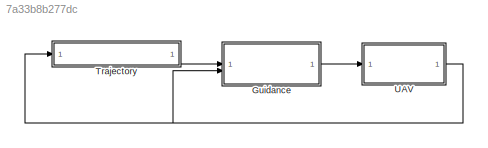
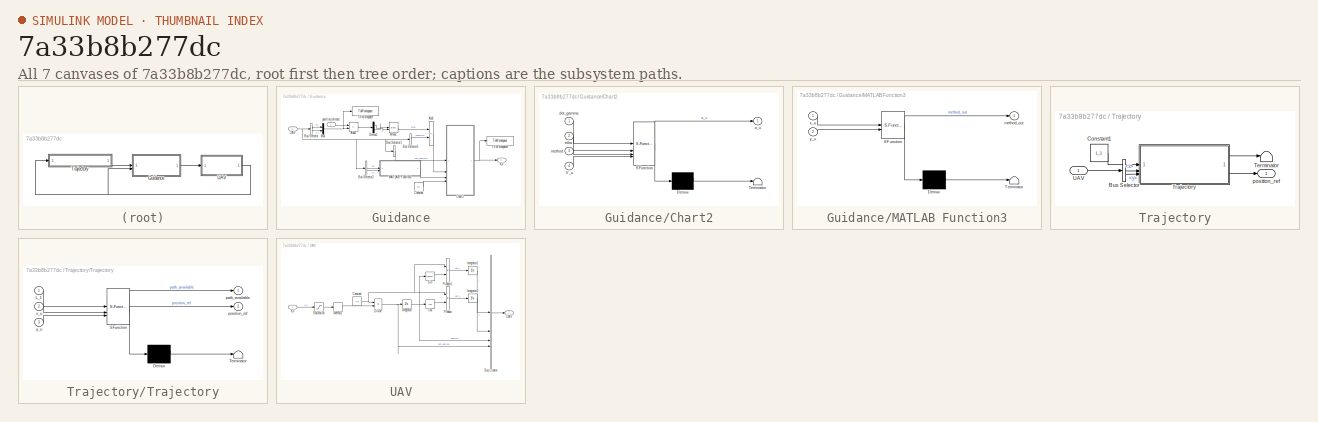
[diagram: thumbnail index - all 7 canvases of the model, root first then tree order]
MODEL slx_7a33b8b277dc
KIND model
CONFIG AbsTol = auto
CONFIG EnableMultiTasking = off
CONFIG FixedStep = 0.1
CONFIG InitFcn = init;
CONFIG MaxStep = auto
CONFIG MinStep = auto
CONFIG RelTol = 1e-3
CONFIG SampleTimeConstraint = Unconstrained
CONFIG SolverName = ode4
CONFIG StartTime = 0.0
CONFIG StopTime = 300
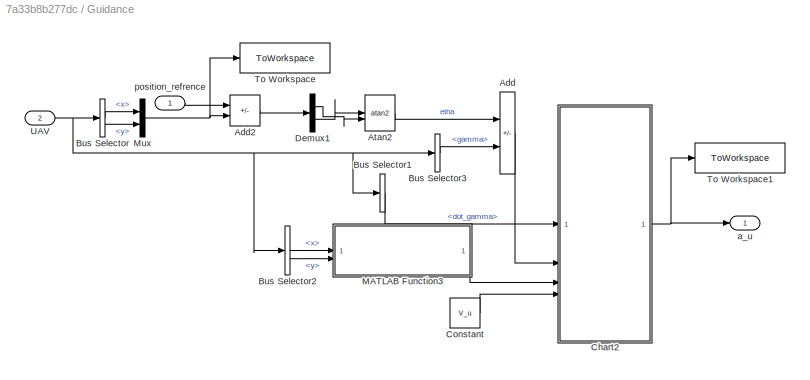
BLOCK [SubSystem] Guidance
BLOCK [Sum] Guidance/Add
  IconShape = rectangular
  Inputs = +-
BLOCK [Sum] Guidance/Add2
  IconShape = rectangular
  Inputs = +-
BLOCK [Trigonometry] Guidance/Atan2
  Operator = atan2
BLOCK [BusSelector] Guidance/Bus Selector
  OutputSignals = x,y
BLOCK [BusSelector] Guidance/Bus Selector1
  OutputSignals = dot_gamma
BLOCK [BusSelector] Guidance/Bus Selector2
  OutputSignals = x,y
BLOCK [BusSelector] Guidance/Bus Selector3
  OutputSignals = gamma
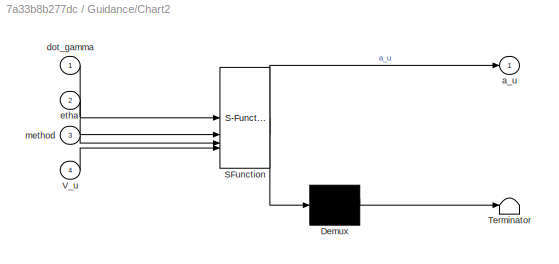
BLOCK [SubSystem] Guidance/Chart2
  ErrorFcn = Stateflow.Translate.translate
  PermitHierarchicalResolution = ExplicitOnly
  PortSchema = {"entries":[{"content":{"sides":[{"content":{"connectorIds":["In2","In1","In3","In4"]},"type":"ConnectorPlacement.EquallySpacedRectSide","uuid":"830c4b3f-6595-47a2-a683-b13964dc589e"},{"content":{"connectorIds":["Out1"],"side":"RIGHT"},"type":"ConnectorPlacement.EquallySpacedRectSide","uuid":"fc41335a-8bf8-4ed1-8cb1-621fe482d25a"},{"content":{"side":"TOP"},"type":"ConnectorPlacement.EquallySpacedR...<+240ch>
  SFBlockType = Chart
  TreatAsAtomicUnit = on
BLOCK [Demux] Guidance/Chart2/ Demux 
  Outputs = 1
BLOCK [S-Function] Guidance/Chart2/ SFunction 
  EnableBusSupport = on
  FunctionName = sf_sfun
  Parameters = L_1,N
  PortCounts = [4 2]
  SFcnIsStateOwnerBlock = off
  SFunctionDeploymentMode = off
  Tag = Stateflow S-Function 8
BLOCK [Terminator] Guidance/Chart2/ Terminator 
BLOCK [Inport] Guidance/Chart2/V_u
  Port = 4
BLOCK [Outport] Guidance/Chart2/a_u
BLOCK [Inport] Guidance/Chart2/dot_gamma
BLOCK [Inport] Guidance/Chart2/etha
  Port = 2
BLOCK [Inport] Guidance/Chart2/method
  Port = 3
BLOCK [Constant] Guidance/Constant
  Value = V_u
BLOCK [Demux] Guidance/Demux1
  Outputs = 2
BLOCK [SubSystem] Guidance/MATLAB Function3
  ErrorFcn = Stateflow.Translate.translate
  LibrarySourceBlock = simulink/User-Defined\nFunctions/MATLAB Function
  PermitHierarchicalResolution = ExplicitOnly
  SFBlockType = MATLAB Function
  TreatAsAtomicUnit = on
BLOCK [Demux] Guidance/MATLAB Function3/ Demux 
  Outputs = 1
BLOCK [S-Function] Guidance/MATLAB Function3/ SFunction 
  EnableBusSupport = on
  FunctionName = sf_sfun
  Parameters = L_1
  PortCounts = [2 2]
  SFcnIsStateOwnerBlock = off
  SFunctionDeploymentMode = off
  Tag = Stateflow S-Function 5
BLOCK [Terminator] Guidance/MATLAB Function3/ Terminator 
BLOCK [Outport] Guidance/MATLAB Function3/method_out
BLOCK [Inport] Guidance/MATLAB Function3/x_u
BLOCK [Inport] Guidance/MATLAB Function3/y_u
  Port = 2
BLOCK [Mux] Guidance/Mux
  DisplayOption = bar
  Inputs = 2
BLOCK [ToWorkspace] Guidance/To Workspace
  FixptAsFi = on
  MaxDataPoints = inf
  SampleTime = -1
  SaveFormat = Structure With Time
  VariableName = X_u
BLOCK [ToWorkspace] Guidance/To Workspace1
  FixptAsFi = on
  MaxDataPoints = inf
  SampleTime = -1
  SaveFormat = Structure With Time
  VariableName = a_u
BLOCK [Inport] Guidance/UAV
  Port = 2
BLOCK [Outport] Guidance/a_u
BLOCK [Inport] Guidance/position_refrence
  NameLocation = top
BLOCK [SubSystem] Trajectory
BLOCK [BusSelector] Trajectory/Bus Selector
  OutputSignals = x,y
BLOCK [Constant] Trajectory/Constant1
  Value = L_1
BLOCK [Terminator] Trajectory/Terminator
BLOCK [SubSystem] Trajectory/Trajectory
  ErrorFcn = Stateflow.Translate.translate
  LibrarySourceBlock = simulink/User-Defined\nFunctions/MATLAB Function
  NameLocation = top
  PermitHierarchicalResolution = ExplicitOnly
  SFBlockType = MATLAB Function
  TreatAsAtomicUnit = on
BLOCK [Demux] Trajectory/Trajectory/ Demux 
  Outputs = 1
BLOCK [S-Function] Trajectory/Trajectory/ SFunction 
  EnableBusSupport = on
  FunctionName = sf_sfun
  PortCounts = [3 3]
  SFcnIsStateOwnerBlock = off
  SFunctionDeploymentMode = off
  Tag = Stateflow S-Function 2
BLOCK [Terminator] Trajectory/Trajectory/ Terminator 
BLOCK [Inport] Trajectory/Trajectory/L_1
BLOCK [Outport] Trajectory/Trajectory/path_available
BLOCK [Outport] Trajectory/Trajectory/position_ref
  Port = 2
BLOCK [Inport] Trajectory/Trajectory/x_u
  Port = 2
BLOCK [Inport] Trajectory/Trajectory/y_u
  Port = 3
BLOCK [Inport] Trajectory/UAV
BLOCK [Outport] Trajectory/position_ref
BLOCK [SubSystem] UAV
BLOCK [BusCreator] UAV/Bus Creator
  DisplayOption = bar
  InheritFromInputs = on
  Inputs = 4
BLOCK [Constant] UAV/Constant
  Value = V_u
BLOCK [Trigonometry] UAV/Cos
  Operator = cos
BLOCK [Product] UAV/Divide
  Inputs = /*
BLOCK [Integrator] UAV/Integrator
  InitialCondition = gamma_0
BLOCK [Integrator] UAV/Integrator1
  InitialCondition = y_0
BLOCK [Integrator] UAV/Integrator2
  InitialCondition = x_0
BLOCK [Memory] UAV/Memory
BLOCK [Product] UAV/Product
BLOCK [Product] UAV/Product1
BLOCK [Saturate] UAV/Saturation
  LowerLimit = -a_u_lim
  UpperLimit = a_u_lim
BLOCK [Trigonometry] UAV/Sin
BLOCK [Outport] UAV/UAV
BLOCK [Inport] UAV/a_u
LINE Guidance/Add2:1 -> Guidance/Demux1:1
LINE Guidance/Add:1 -> Guidance/Chart2:2
LINE Guidance/Atan2:1 -> Guidance/Add:1
LINE Guidance/Bus Selector1:1 -> Guidance/Chart2:1
LINE Guidance/Bus Selector2:1 -> Guidance/MATLAB Function3:1
LINE Guidance/Bus Selector2:2 -> Guidance/MATLAB Function3:2
LINE Guidance/Bus Selector3:1 -> Guidance/Add:2
LINE Guidance/Bus Selector:1 -> Guidance/Mux:1
LINE Guidance/Bus Selector:2 -> Guidance/Mux:2
NET Guidance/Chart2:1 -> Guidance/To Workspace1:1, Guidance/a_u:1
LINE Guidance/Constant:1 -> Guidance/Chart2:4
LINE Guidance/Demux1:1 -> Guidance/Atan2:2
LINE Guidance/Demux1:2 -> Guidance/Atan2:1
LINE Guidance/MATLAB Function3:1 -> Guidance/Chart2:3
NET Guidance/Mux:1 -> Guidance/Add2:2, Guidance/To Workspace:1
NET Guidance/UAV:1 -> Guidance/Bus Selector1:1, Guidance/Bus Selector2:1, Guidance/Bus Selector3:1, Guidance/Bus Selector:1
LINE Guidance/position_refrence:1 -> Guidance/Add2:1
LINE Guidance:1 -> UAV:1
LINE Trajectory/Bus Selector:1 -> Trajectory/Trajectory:2
LINE Trajectory/Bus Selector:2 -> Trajectory/Trajectory:3
LINE Trajectory/Constant1:1 -> Trajectory/Trajectory:1
LINE Trajectory/Trajectory:1 -> Trajectory/Terminator:1
LINE Trajectory/Trajectory:2 -> Trajectory/position_ref:1
LINE Trajectory/UAV:1 -> Trajectory/Bus Selector:1
LINE Trajectory:1 -> Guidance:1
LINE UAV/Bus Creator:1 -> UAV/UAV:1
NET UAV/Constant:1 -> UAV/Divide:1, UAV/Product1:1, UAV/Product:1
LINE UAV/Cos:1 -> UAV/Product:2
NET UAV/Divide:1 -> UAV/Bus Creator:4, UAV/Integrator:1
LINE UAV/Integrator1:1 -> UAV/Bus Creator:1
LINE UAV/Integrator2:1 -> UAV/Bus Creator:2
NET UAV/Integrator:1 -> UAV/Bus Creator:3, UAV/Cos:1, UAV/Sin:1
LINE UAV/Memory:1 -> UAV/Divide:2
LINE UAV/Product1:1 -> UAV/Integrator1:1
LINE UAV/Product:1 -> UAV/Integrator2:1
LINE UAV/Saturation:1 -> UAV/Memory:1
LINE UAV/Sin:1 -> UAV/Product1:2
LINE UAV/a_u:1 -> UAV/Saturation:1
NET UAV:1 -> Guidance:2, Trajectory:1
note: NET lines group one-source signal fan-out (src -> all destinations, sorted); 1:1 wires keep LINE
CHART Trajectory/Trajectory states=1 transitions=1
  STATE_LABEL 'eML_blk_kernel()'
  STATE_LABEL 'SCRIPT:\nfunction [path_available, position_ref] = trajectory(L_1, x_u, y_u)\n\n\n\nx = 0:1:50000;\nx = 50000 - x;\ny = 0.5*x;\nfor i=1:1:length(x)\n    if L_1 > sqrt((x(i)-x_u)^2 + (y(i)-y_u)^2)\n        path_available = 1;\n        break\n    else \n        path_available = 0;\n    end \nend\n\nposition_ref = [x(i), y(i)];'
CHART Guidance/MATLAB Function3 states=1 transitions=1
  STATE_LABEL 'eML_blk_kernel()'
  STATE_LABEL 'SCRIPT:\nfunction method_out = ref_distance(x_u,y_u, L_1)\n\npersistent method\nif isempty(method)\n    method = 1;\nend\nref_dis = (x_u^2 + y_u^2)^0.5;\nif ref_dis<0.8*L_1\n    method = 2;\nend\nmethod_out = method;\n\n'
CHART Guidance/Chart2 states=2 transitions=2
  STATE_LABEL 'PPN\n\na_u = N*V_u*dot_gamma;\n'
  STATE_LABEL 'Nonlinear_Guidance_Algorithm\n\na_u =  V_u^2*sin(etha)/L_1;'
CHART  states=0 transitions=0
CHART  states=0 transitions=0
CHART  states=0 transitions=0
